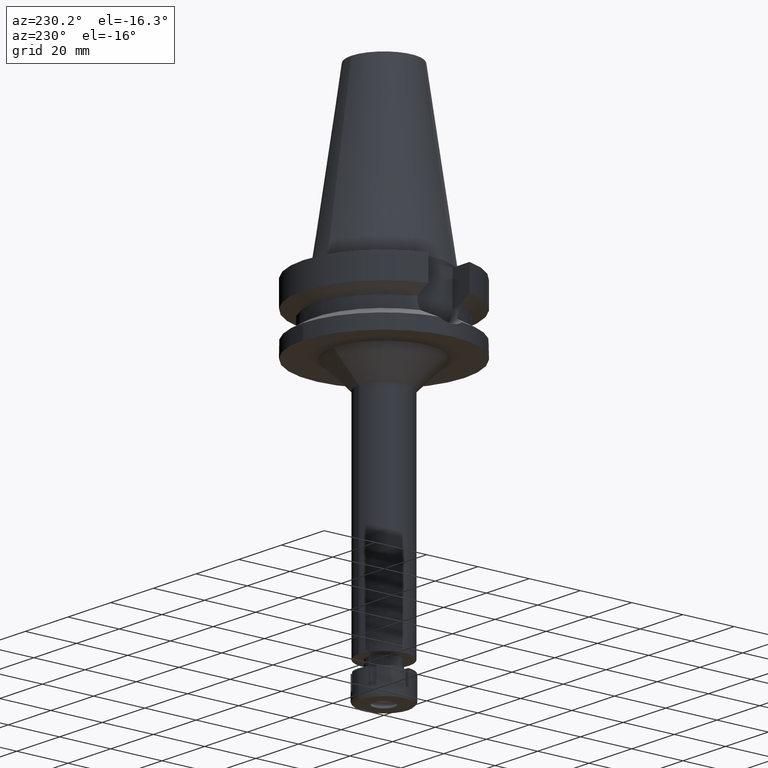
[diagram: clean part render]
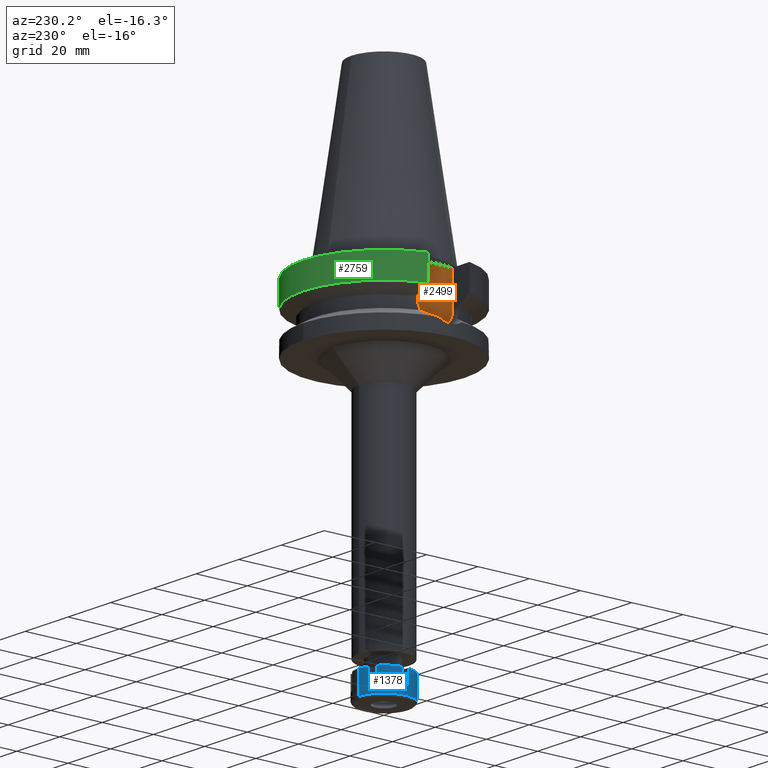
[diagram: same view with three faces highlighted in distinct colors, each labeled with its STEP entity id]
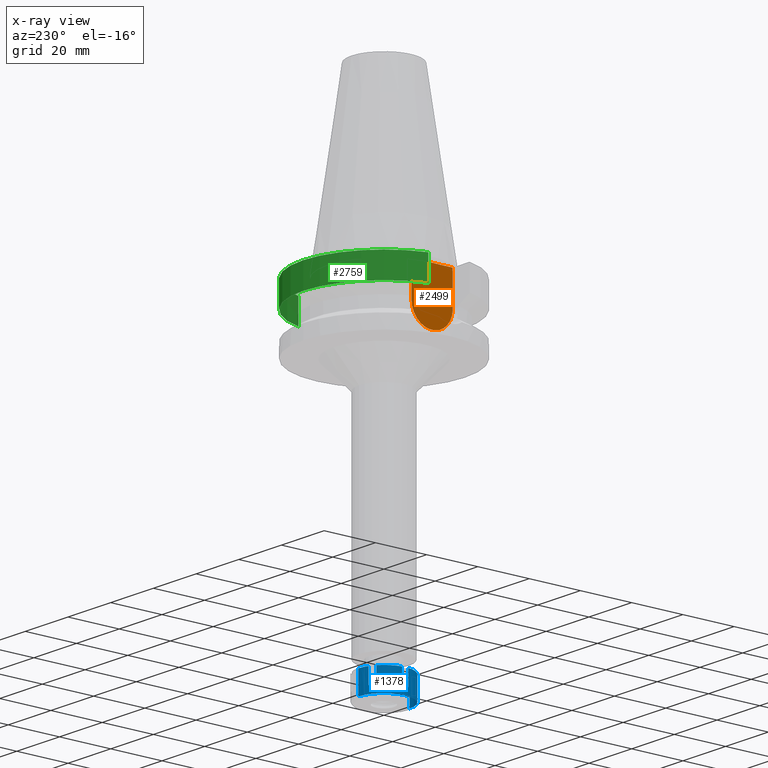
[diagram: x-ray of the same camera — body ghosted, the three highlighted faces saturated]
A machine part, auxiliary view with three faces highlighted in distinct colors.
The next image is the same camera in x-ray (body ghosted, the three faces saturated) — at least one of them is partly hidden behind the body in this view.
Their STEP definitions:

[orange] entity #2499 — the highlighted planar face has unit normal (-1, 0, 0).
#61 = DIRECTION ( 'NONE',  ( 0.0000000000000000000, 0.0000000000000000000, -1.000000000000000000 ) ) ;
#63 = LINE ( 'NONE', #1197, #1970 ) ;
#100 = CARTESIAN_POINT ( 'NONE',  ( -22.50000000000000000, 1.807578675540999863E-14, -14.94999999999999929 ) ) ;
#115 = CARTESIAN_POINT ( 'NONE',  ( -22.50000000000000000, -8.050000000000000711, -2.000000000000000000 ) ) ;
#269 = VERTEX_POINT ( 'NONE', #958 ) ;
#337 = DIRECTION ( 'NONE',  ( 0.0000000000000000000, -1.000000000000000000, 1.917893035551997704E-14 ) ) ;
#523 = VERTEX_POINT ( 'NONE', #2014 ) ;
#562 = PLANE ( 'NONE',  #2131 ) ;
#639 = EDGE_CURVE ( 'NONE', #1187, #2744, #63, .T. ) ;
#817 = CARTESIAN_POINT ( 'NONE',  ( -22.50000000000000000, 2.173748068486999793E-14, 0.0000000000000000000 ) ) ;
#846 = CIRCLE ( 'NONE', #2753, 8.050000000000000711 ) ;
#870 = FACE_OUTER_BOUND ( 'NONE', #2143, .T. ) ;
#924 = DIRECTION ( 'NONE',  ( 0.0000000000000000000, 0.0000000000000000000, 1.000000000000000000 ) ) ;
#958 = CARTESIAN_POINT ( 'NONE',  ( -22.50000000000000000, 8.050000000000000711, -14.94999999999999929 ) ) ;
#1062 = ORIENTED_EDGE ( 'NONE', *, *, #3238, .F. ) ;
#1093 = EDGE_CURVE ( 'NONE', #1187, #523, #2325, .T. ) ;
#1099 = ORIENTED_EDGE ( 'NONE', *, *, #1209, .F. ) ;
#1187 = VERTEX_POINT ( 'NONE', #2884 ) ;
#1190 = LINE ( 'NONE', #2337, #2297 ) ;
#1197 = CARTESIAN_POINT ( 'NONE',  ( -22.50000000000000000, -8.050000000000000711, -2.000000000000000000 ) ) ;
#1209 = EDGE_CURVE ( 'NONE', #523, #269, #846, .T. ) ;
#1534 = ORIENTED_EDGE ( 'NONE', *, *, #639, .T. ) ;
#1970 = VECTOR ( 'NONE', #2327, 1000.000000000000000 ) ;
#2014 = CARTESIAN_POINT ( 'NONE',  ( -22.50000000000000000, -8.050000000000000711, -14.94999999999999929 ) ) ;
#2131 = AXIS2_PLACEMENT_3D ( 'NONE', #817, #2831, #3077 ) ;
#2143 = EDGE_LOOP ( 'NONE', ( #1062, #1099, #3385, #1534 ) ) ;
#2297 = VECTOR ( 'NONE', #924, 1000.000000000000000 ) ;
#2325 = LINE ( 'NONE', #115, #3149 ) ;
#2327 = DIRECTION ( 'NONE',  ( 0.0000000000000000000, 1.000000000000000000, 0.0000000000000000000 ) ) ;
#2337 = CARTESIAN_POINT ( 'NONE',  ( -22.50000000000000000, 8.050000000000000711, -14.94999999999999929 ) ) ;
#2499 = ADVANCED_FACE ( 'NONE', ( #870 ), #562, .T. ) ;
#2744 = VERTEX_POINT ( 'NONE', #3291 ) ;
#2753 = AXIS2_PLACEMENT_3D ( 'NONE', #100, #3188, #337 ) ;
#2831 = DIRECTION ( 'NONE',  ( -1.000000000000000000, 0.0000000000000000000, 0.0000000000000000000 ) ) ;
#2884 = CARTESIAN_POINT ( 'NONE',  ( -22.50000000000000000, -8.050000000000000711, -2.000000000000000000 ) ) ;
#3077 = DIRECTION ( 'NONE',  ( 0.0000000000000000000, 0.0000000000000000000, 1.000000000000000000 ) ) ;
#3149 = VECTOR ( 'NONE', #61, 1000.000000000000000 ) ;
#3188 = DIRECTION ( 'NONE',  ( 1.000000000000000000, 0.0000000000000000000, 0.0000000000000000000 ) ) ;
#3238 = EDGE_CURVE ( 'NONE', #269, #2744, #1190, .T. ) ;
#3291 = CARTESIAN_POINT ( 'NONE',  ( -22.50000000000000000, 8.050000000000000711, -2.000000000000000000 ) ) ;
#3385 = ORIENTED_EDGE ( 'NONE', *, *, #1093, .F. ) ;

[blue] entity #1378 — the highlighted cylindrical surface (edge-blend (fillet) strip) has radius 10 mm, axis along (0, 0, -1).
#3 = VERTEX_POINT ( 'NONE', #1754 ) ;
#22 = DIRECTION ( 'NONE',  ( 0.0000000000000000000, -1.000000000000000000, 0.0000000000000000000 ) ) ;
#41 = EDGE_LOOP ( 'NONE', ( #2764, #907, #155, #3587, #782, #1078, #2190, #2328, #1718, #2346, #1931, #833, #121, #199, #1900, #1125 ) ) ;
#116 = EDGE_CURVE ( 'NONE', #3207, #1998, #1442, .T. ) ;
#121 = ORIENTED_EDGE ( 'NONE', *, *, #550, .F. ) ;
#134 = CARTESIAN_POINT ( 'NONE',  ( -6.043315462977000507, -7.967329428041999506, 0.0000000000000000000 ) ) ;
#155 = ORIENTED_EDGE ( 'NONE', *, *, #2432, .T. ) ;
#166 = CIRCLE ( 'NONE', #999, 9.999999999999998224 ) ;
#192 = CARTESIAN_POINT ( 'NONE',  ( -9.921567416491999580, -1.250000000000000000, -6.000000000000000000 ) ) ;
#193 = VECTOR ( 'NONE', #2164, 1000.000000000000000 ) ;
#199 = ORIENTED_EDGE ( 'NONE', *, *, #2410, .T. ) ;
#235 = CIRCLE ( 'NONE', #1650, 10.00000000000000000 ) ;
#238 = EDGE_CURVE ( 'NONE', #1468, #594, #794, .T. ) ;
#299 = EDGE_CURVE ( 'NONE', #3293, #3226, #962, .T. ) ;
#380 = CARTESIAN_POINT ( 'NONE',  ( 0.0000000000000000000, 0.0000000000000000000, -6.000000000000000000 ) ) ;
#434 = CARTESIAN_POINT ( 'NONE',  ( 0.0000000000000000000, 0.0000000000000000000, 0.0000000000000000000 ) ) ;
#436 = EDGE_CURVE ( 'NONE', #1468, #3226, #2818, .T. ) ;
#466 = CARTESIAN_POINT ( 'NONE',  ( -3.878251953514999961, 9.217329428041999506, -6.000000000000000000 ) ) ;
#484 = VERTEX_POINT ( 'NONE', #2746 ) ;
#500 = CARTESIAN_POINT ( 'NONE',  ( -6.043315462977000507, 7.967329428041999506, -6.000000000000000000 ) ) ;
#550 = EDGE_CURVE ( 'NONE', #3, #2316, #1412, .T. ) ;
#565 = CARTESIAN_POINT ( 'NONE',  ( -3.878251953516000050, -9.217329428041999506, 0.0000000000000000000 ) ) ;
#594 = VERTEX_POINT ( 'NONE', #565 ) ;
#600 = CARTESIAN_POINT ( 'NONE',  ( 0.0000000000000000000, 10.00000000000000000, -8.800000000000000711 ) ) ;
#633 = VECTOR ( 'NONE', #2442, 1000.000000000000000 ) ;
#663 = EDGE_CURVE ( 'NONE', #980, #594, #3476, .T. ) ;
#732 = DIRECTION ( 'NONE',  ( 0.0000000000000000000, 0.0000000000000000000, -1.000000000000000000 ) ) ;
#734 = CARTESIAN_POINT ( 'NONE',  ( 0.0000000000000000000, 0.0000000000000000000, 0.0000000000000000000 ) ) ;
#743 = CYLINDRICAL_SURFACE ( 'NONE', #923, 10.00000000000000000 ) ;
#747 = EDGE_CURVE ( 'NONE', #3207, #1694, #1826, .T. ) ;
#782 = ORIENTED_EDGE ( 'NONE', *, *, #436, .F. ) ;
#794 = CIRCLE ( 'NONE', #1570, 10.00000000000000000 ) ;
#833 = ORIENTED_EDGE ( 'NONE', *, *, #2116, .T. ) ;
#834 = LINE ( 'NONE', #3367, #3244 ) ;
#841 = VECTOR ( 'NONE', #950, 1000.000000000000000 ) ;
#884 = EDGE_CURVE ( 'NONE', #2629, #1658, #2715, .T. ) ;
#885 = CARTESIAN_POINT ( 'NONE',  ( 0.0000000000000000000, -10.00000000000000000, -8.800000000000000711 ) ) ;
#888 = CARTESIAN_POINT ( 'NONE',  ( -3.878251953514999961, 9.217329428041999506, 0.0000000000000000000 ) ) ;
#907 = ORIENTED_EDGE ( 'NONE', *, *, #3427, .T. ) ;
#923 = AXIS2_PLACEMENT_3D ( 'NONE', #3114, #2847, #22 ) ;
#950 = DIRECTION ( 'NONE',  ( 0.0000000000000000000, 0.0000000000000000000, 1.000000000000000000 ) ) ;
#962 = CIRCLE ( 'NONE', #3029, 10.00000000000000000 ) ;
#980 = VERTEX_POINT ( 'NONE', #1516 ) ;
#996 = CARTESIAN_POINT ( 'NONE',  ( 0.0000000000000000000, 0.0000000000000000000, 0.0000000000000000000 ) ) ;
#999 = AXIS2_PLACEMENT_3D ( 'NONE', #1367, #3093, #1419 ) ;
#1029 = CARTESIAN_POINT ( 'NONE',  ( -9.921567416491999580, 1.250000000000000000, -6.000000000000000000 ) ) ;
#1078 = ORIENTED_EDGE ( 'NONE', *, *, #238, .T. ) ;
#1125 = ORIENTED_EDGE ( 'NONE', *, *, #2975, .T. ) ;
#1216 = CARTESIAN_POINT ( 'NONE',  ( -3.878251953516000050, -9.217329428041999506, -6.000000000000000000 ) ) ;
#1241 = DIRECTION ( 'NONE',  ( 0.0000000000000000000, 0.0000000000000000000, -1.000000000000000000 ) ) ;
#1271 = DIRECTION ( 'NONE',  ( 0.0000000000000000000, 0.0000000000000000000, -1.000000000000000000 ) ) ;
#1273 = DIRECTION ( 'NONE',  ( 0.0000000000000000000, -1.000000000000000000, 0.0000000000000000000 ) ) ;
#1274 = EDGE_CURVE ( 'NONE', #2925, #484, #1578, .T. ) ;
#1357 = DIRECTION ( 'NONE',  ( -0.3878251953516005379, -0.9217329428042011497, 0.0000000000000000000 ) ) ;
#1367 = CARTESIAN_POINT ( 'NONE',  ( 0.0000000000000000000, 0.0000000000000000000, -6.000000000000000000 ) ) ;
#1378 = ADVANCED_FACE ( 'NONE', ( #2456 ), #743, .T. ) ;
#1389 = DIRECTION ( 'NONE',  ( 0.0000000000000000000, 0.0000000000000000000, -1.000000000000000000 ) ) ;
#1412 = LINE ( 'NONE', #2274, #2507 ) ;
#1419 = DIRECTION ( 'NONE',  ( -0.6043315462976971419, 0.7967329428041960426, 0.0000000000000000000 ) ) ;
#1440 = VERTEX_POINT ( 'NONE', #2829 ) ;
#1442 = CIRCLE ( 'NONE', #2525, 9.999999999999998224 ) ;
#1465 = CARTESIAN_POINT ( 'NONE',  ( 0.0000000000000000000, 10.00000000000000000, 0.0000000000000000000 ) ) ;
#1468 = VERTEX_POINT ( 'NONE', #1930 ) ;
#1516 = CARTESIAN_POINT ( 'NONE',  ( -3.878251953516000050, -9.217329428041999506, -6.000000000000000000 ) ) ;
#1570 = AXIS2_PLACEMENT_3D ( 'NONE', #734, #1241, #1273 ) ;
#1578 = LINE ( 'NONE', #500, #3210 ) ;
#1650 = AXIS2_PLACEMENT_3D ( 'NONE', #1726, #1389, #1357 ) ;
#1658 = VERTEX_POINT ( 'NONE', #466 ) ;
#1694 = VERTEX_POINT ( 'NONE', #3255 ) ;
#1718 = ORIENTED_EDGE ( 'NONE', *, *, #747, .F. ) ;
#1726 = CARTESIAN_POINT ( 'NONE',  ( 0.0000000000000000000, 0.0000000000000000000, -6.000000000000000000 ) ) ;
#1735 = CARTESIAN_POINT ( 'NONE',  ( 0.0000000000000000000, 0.0000000000000000000, 0.0000000000000000000 ) ) ;
#1754 = CARTESIAN_POINT ( 'NONE',  ( -9.921567416491999580, 1.250000000000000000, 0.0000000000000000000 ) ) ;
#1826 = LINE ( 'NONE', #134, #3555 ) ;
#1853 = VECTOR ( 'NONE', #2968, 1000.000000000000000 ) ;
#1900 = ORIENTED_EDGE ( 'NONE', *, *, #1274, .F. ) ;
#1910 = DIRECTION ( 'NONE',  ( 0.0000000000000000000, 0.0000000000000000000, 1.000000000000000000 ) ) ;
#1913 = DIRECTION ( 'NONE',  ( -0.9921567416492210745, 0.1250000000000026090, 0.0000000000000000000 ) ) ;
#1930 = CARTESIAN_POINT ( 'NONE',  ( 0.0000000000000000000, -10.00000000000000000, 0.0000000000000000000 ) ) ;
#1931 = ORIENTED_EDGE ( 'NONE', *, *, #3612, .F. ) ;
#1998 = VERTEX_POINT ( 'NONE', #3181 ) ;
#2002 = DIRECTION ( 'NONE',  ( 0.0000000000000000000, 0.0000000000000000000, -1.000000000000000000 ) ) ;
#2111 = CARTESIAN_POINT ( 'NONE',  ( 0.0000000000000000000, 0.0000000000000000000, -8.800000000000000711 ) ) ;
#2116 = EDGE_CURVE ( 'NONE', #1440, #2316, #2767, .T. ) ;
#2164 = DIRECTION ( 'NONE',  ( 0.0000000000000000000, 0.0000000000000000000, -1.000000000000000000 ) ) ;
#2181 = LINE ( 'NONE', #192, #633 ) ;
#2190 = ORIENTED_EDGE ( 'NONE', *, *, #663, .F. ) ;
#2249 = CARTESIAN_POINT ( 'NONE',  ( -6.043315462977000507, 7.967329428041999506, -6.000000000000000000 ) ) ;
#2274 = CARTESIAN_POINT ( 'NONE',  ( -9.921567416491999580, 1.250000000000000000, 0.0000000000000000000 ) ) ;
#2316 = VERTEX_POINT ( 'NONE', #1029 ) ;
#2328 = ORIENTED_EDGE ( 'NONE', *, *, #2460, .T. ) ;
#2346 = ORIENTED_EDGE ( 'NONE', *, *, #116, .T. ) ;
#2410 = EDGE_CURVE ( 'NONE', #3, #484, #2790, .T. ) ;
#2422 = DIRECTION ( 'NONE',  ( 0.0000000000000000000, 0.0000000000000000000, 1.000000000000000000 ) ) ;
#2432 = EDGE_CURVE ( 'NONE', #2578, #3293, #834, .T. ) ;
#2442 = DIRECTION ( 'NONE',  ( 0.0000000000000000000, 0.0000000000000000000, 1.000000000000000000 ) ) ;
#2456 = FACE_OUTER_BOUND ( 'NONE', #41, .T. ) ;
#2460 = EDGE_CURVE ( 'NONE', #980, #1694, #235, .T. ) ;
#2507 = VECTOR ( 'NONE', #3387, 1000.000000000000000 ) ;
#2525 = AXIS2_PLACEMENT_3D ( 'NONE', #1735, #2002, #2874 ) ;
#2578 = VERTEX_POINT ( 'NONE', #1465 ) ;
#2629 = VERTEX_POINT ( 'NONE', #888 ) ;
#2645 = AXIS2_PLACEMENT_3D ( 'NONE', #380, #2947, #2669 ) ;
#2669 = DIRECTION ( 'NONE',  ( -0.9921567416492210745, -0.1250000000000026090, 0.0000000000000000000 ) ) ;
#2715 = LINE ( 'NONE', #3522, #1853 ) ;
#2729 = AXIS2_PLACEMENT_3D ( 'NONE', #434, #732, #1913 ) ;
#2746 = CARTESIAN_POINT ( 'NONE',  ( -6.043315462977000507, 7.967329428041999506, 0.0000000000000000000 ) ) ;
#2764 = ORIENTED_EDGE ( 'NONE', *, *, #884, .F. ) ;
#2767 = CIRCLE ( 'NONE', #2645, 9.999999999999998224 ) ;
#2790 = CIRCLE ( 'NONE', #2729, 9.999999999999998224 ) ;
#2800 = CARTESIAN_POINT ( 'NONE',  ( 0.0000000000000000000, -10.00000000000000000, 0.0000000000000000000 ) ) ;
#2818 = LINE ( 'NONE', #2800, #193 ) ;
#2829 = CARTESIAN_POINT ( 'NONE',  ( -9.921567416491999580, -1.250000000000000000, -6.000000000000000000 ) ) ;
#2847 = DIRECTION ( 'NONE',  ( 0.0000000000000000000, 0.0000000000000000000, -1.000000000000000000 ) ) ;
#2874 = DIRECTION ( 'NONE',  ( -0.6043315462976971419, -0.7967329428041960426, 0.0000000000000000000 ) ) ;
#2925 = VERTEX_POINT ( 'NONE', #2249 ) ;
#2947 = DIRECTION ( 'NONE',  ( 0.0000000000000000000, 0.0000000000000000000, -1.000000000000000000 ) ) ;
#2968 = DIRECTION ( 'NONE',  ( 0.0000000000000000000, 0.0000000000000000000, -1.000000000000000000 ) ) ;
#2975 = EDGE_CURVE ( 'NONE', #2925, #1658, #166, .T. ) ;
#3003 = CIRCLE ( 'NONE', #3057, 10.00000000000000000 ) ;
#3029 = AXIS2_PLACEMENT_3D ( 'NONE', #2111, #2422, #3232 ) ;
#3057 = AXIS2_PLACEMENT_3D ( 'NONE', #996, #1271, #3248 ) ;
#3093 = DIRECTION ( 'NONE',  ( 0.0000000000000000000, 0.0000000000000000000, -1.000000000000000000 ) ) ;
#3114 = CARTESIAN_POINT ( 'NONE',  ( 0.0000000000000000000, 0.0000000000000000000, 0.0000000000000000000 ) ) ;
#3181 = CARTESIAN_POINT ( 'NONE',  ( -9.921567416491999580, -1.250000000000000000, 0.0000000000000000000 ) ) ;
#3182 = CARTESIAN_POINT ( 'NONE',  ( -6.043315462977000507, -7.967329428041999506, 0.0000000000000000000 ) ) ;
#3207 = VERTEX_POINT ( 'NONE', #3182 ) ;
#3210 = VECTOR ( 'NONE', #1910, 1000.000000000000000 ) ;
#3226 = VERTEX_POINT ( 'NONE', #885 ) ;
#3232 = DIRECTION ( 'NONE',  ( 0.0000000000000000000, 1.000000000000000000, 0.0000000000000000000 ) ) ;
#3244 = VECTOR ( 'NONE', #3400, 1000.000000000000000 ) ;
#3245 = DIRECTION ( 'NONE',  ( 0.0000000000000000000, 0.0000000000000000000, -1.000000000000000000 ) ) ;
#3248 = DIRECTION ( 'NONE',  ( -0.3878251953515154948, 0.9217329428042371209, 0.0000000000000000000 ) ) ;
#3255 = CARTESIAN_POINT ( 'NONE',  ( -6.043315462977000507, -7.967329428041999506, -6.000000000000000000 ) ) ;
#3293 = VERTEX_POINT ( 'NONE', #600 ) ;
#3367 = CARTESIAN_POINT ( 'NONE',  ( 0.0000000000000000000, 10.00000000000000000, 0.0000000000000000000 ) ) ;
#3387 = DIRECTION ( 'NONE',  ( 0.0000000000000000000, 0.0000000000000000000, -1.000000000000000000 ) ) ;
#3400 = DIRECTION ( 'NONE',  ( 0.0000000000000000000, 0.0000000000000000000, -1.000000000000000000 ) ) ;
#3427 = EDGE_CURVE ( 'NONE', #2629, #2578, #3003, .T. ) ;
#3476 = LINE ( 'NONE', #1216, #841 ) ;
#3522 = CARTESIAN_POINT ( 'NONE',  ( -3.878251953514999961, 9.217329428041999506, 0.0000000000000000000 ) ) ;
#3555 = VECTOR ( 'NONE', #3245, 1000.000000000000000 ) ;
#3587 = ORIENTED_EDGE ( 'NONE', *, *, #299, .T. ) ;
#3612 = EDGE_CURVE ( 'NONE', #1440, #1998, #2181, .T. ) ;

[green] entity #2759 — the highlighted cylindrical surface (partial cylindrical patch) has radius 31.5 mm, axis along (0, 0, -1).
#99 = CIRCLE ( 'NONE', #1752, 31.50000000000000000 ) ;
#151 = FACE_OUTER_BOUND ( 'NONE', #951, .T. ) ;
#210 = DIRECTION ( 'NONE',  ( 0.0000000000000000000, 1.000000000000000000, 0.0000000000000000000 ) ) ;
#249 = ORIENTED_EDGE ( 'NONE', *, *, #906, .T. ) ;
#757 = DIRECTION ( 'NONE',  ( 0.0000000000000000000, -1.000000000000000000, 0.0000000000000000000 ) ) ;
#775 = CARTESIAN_POINT ( 'NONE',  ( 0.0000000000000000000, 1.065333950388000029E-14, -11.56550565266999975 ) ) ;
#792 = VERTEX_POINT ( 'NONE', #2681 ) ;
#906 = EDGE_CURVE ( 'NONE', #792, #1242, #1260, .T. ) ;
#951 = EDGE_LOOP ( 'NONE', ( #2534, #249, #1364, #2750 ) ) ;
#1041 = DIRECTION ( 'NONE',  ( 0.0000000000000000000, 0.0000000000000000000, -1.000000000000000000 ) ) ;
#1056 = DIRECTION ( 'NONE',  ( -1.995593859483988896E-08, 7.549574290453958271E-08, 0.9999999999999968914 ) ) ;
#1109 = VERTEX_POINT ( 'NONE', #1506 ) ;
#1242 = VERTEX_POINT ( 'NONE', #3458 ) ;
#1260 = CIRCLE ( 'NONE', #3437, 31.50000000000000000 ) ;
#1292 = EDGE_CURVE ( 'NONE', #1109, #1923, #99, .T. ) ;
#1301 = LINE ( 'NONE', #2469, #1886 ) ;
#1364 = ORIENTED_EDGE ( 'NONE', *, *, #1707, .F. ) ;
#1506 = CARTESIAN_POINT ( 'NONE',  ( 30.45402291367999936, 8.049999277843999934, -11.56551215696999968 ) ) ;
#1538 = CARTESIAN_POINT ( 'NONE',  ( 30.45402291367999936, 8.049999277843999934, -11.56551215696999968 ) ) ;
#1625 = CARTESIAN_POINT ( 'NONE',  ( -30.45402162750999864, 8.050004143564001069, -11.56546832919999979 ) ) ;
#1707 = EDGE_CURVE ( 'NONE', #1109, #1242, #2969, .T. ) ;
#1752 = AXIS2_PLACEMENT_3D ( 'NONE', #775, #2176, #210 ) ;
#1788 = EDGE_CURVE ( 'NONE', #792, #1923, #1301, .T. ) ;
#1839 = CARTESIAN_POINT ( 'NONE',  ( 0.0000000000000000000, 2.145213798065999842E-14, 75.17000000000000171 ) ) ;
#1886 = VECTOR ( 'NONE', #2189, 999.9999999999998863 ) ;
#1923 = VERTEX_POINT ( 'NONE', #1625 ) ;
#2157 = CYLINDRICAL_SURFACE ( 'NONE', #2601, 31.50000000000000000 ) ;
#2176 = DIRECTION ( 'NONE',  ( 0.0000000000000000000, 0.0000000000000000000, 1.000000000000000000 ) ) ;
#2189 = DIRECTION ( 'NONE',  ( 1.145037467281999646E-07, 4.331794986136998256E-07, -0.9999999999998997469 ) ) ;
#2423 = VECTOR ( 'NONE', #1056, 1000.000000000000227 ) ;
#2469 = CARTESIAN_POINT ( 'NONE',  ( -30.45402272279000044, 8.050000000000000711, -2.000000000000000000 ) ) ;
#2534 = ORIENTED_EDGE ( 'NONE', *, *, #1788, .F. ) ;
#2601 = AXIS2_PLACEMENT_3D ( 'NONE', #1839, #1041, #757 ) ;
#2675 = DIRECTION ( 'NONE',  ( 0.0000000000000000000, 0.0000000000000000000, -1.000000000000000000 ) ) ;
#2681 = CARTESIAN_POINT ( 'NONE',  ( -30.45402272279000044, 8.050000000000000711, -2.000000000000000000 ) ) ;
#2750 = ORIENTED_EDGE ( 'NONE', *, *, #1292, .T. ) ;
#2759 = ADVANCED_FACE ( 'NONE', ( #151 ), #2157, .T. ) ;
#2969 = LINE ( 'NONE', #1538, #2423 ) ;
#3253 = CARTESIAN_POINT ( 'NONE',  ( 0.0000000000000000000, 2.145213798065999842E-14, -2.000000000000000000 ) ) ;
#3285 = DIRECTION ( 'NONE',  ( 0.0000000000000000000, 1.000000000000000000, 0.0000000000000000000 ) ) ;
#3437 = AXIS2_PLACEMENT_3D ( 'NONE', #3253, #2675, #3285 ) ;
#3458 = CARTESIAN_POINT ( 'NONE',  ( 30.45402272279000044, 8.050000000000000711, -2.000000000000000000 ) ) ;